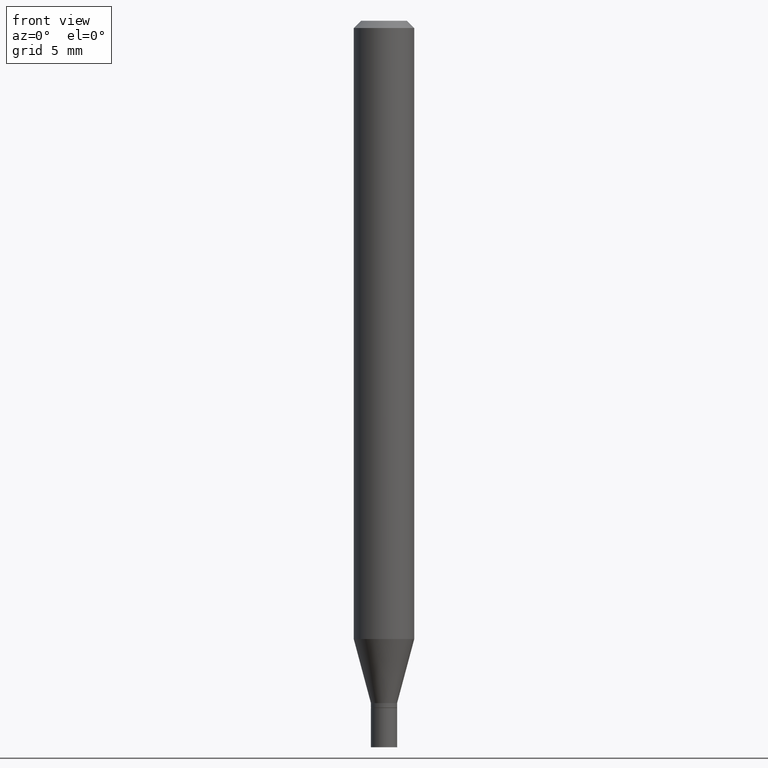
[diagram: clean part render]
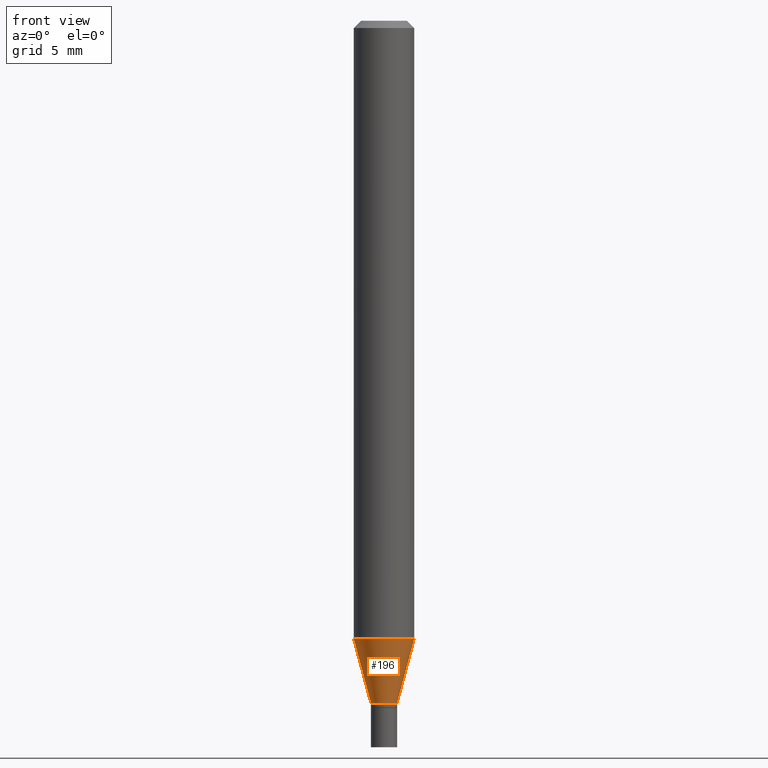
[diagram: same view with one face highlighted and labeled with its STEP entity id]
A machine part, front view. The second image highlights one B-rep face of the part: STEP entity #196.
In plain terms, the highlighted conical surface has half-angle 15 deg.
Its self-contained STEP definition (entity closure, byte-faithful):
#5 = DIRECTION ( 'NONE',  ( -0.2588190451025209060, 5.211531920934547097E-15, 0.9659258262890682012 ) ) ;
#50 = CARTESIAN_POINT ( 'NONE',  ( 3.445665547914857626E-29, -4.919497206429992694E-15, -1.409000000000000252 ) ) ;
#53 = EDGE_LOOP ( 'NONE', ( #230, #303, #254, #236 ) ) ;
#88 = DIRECTION ( 'NONE',  ( 1.000000000000000000, -6.982962677686281699E-15, 0.000000000000000000 ) ) ;
#119 = CARTESIAN_POINT ( 'NONE',  ( 0.06250000000000000000, -4.893353679651821108E-15, -1.276512196331304860 ) ) ;
#129 = CARTESIAN_POINT ( 'NONE',  ( 3.121670756843082346E-29, -4.456918512296428650E-15, -1.276512196331304860 ) ) ;
#135 = AXIS2_PLACEMENT_3D ( 'NONE', #461, #459, #416 ) ;
#139 = CARTESIAN_POINT ( 'NONE',  ( -0.02699999999999991990, -4.370239985110565754E-15, -1.409000000000000252 ) ) ;
#148 = AXIS2_PLACEMENT_3D ( 'NONE', #129, #209, #276 ) ;
#160 = CONICAL_SURFACE ( 'NONE', #285, 0.02699999999999991990, 0.2617993877991495744 ) ;
#170 = EDGE_CURVE ( 'NONE', #393, #210, #286, .T. ) ;
#171 = CARTESIAN_POINT ( 'NONE',  ( 0.02699999999999991990, -5.108037198727522179E-15, -1.409000000000000252 ) ) ;
#185 = DIRECTION ( 'NONE',  ( 0.2588190451025209060, 1.565188264969625123E-15, 0.9659258262890682012 ) ) ;
#196 = ADVANCED_FACE ( 'NONE', ( #334 ), #160, .T. ) ;
#204 = VERTEX_POINT ( 'NONE', #310 ) ;
#209 = DIRECTION ( 'NONE',  ( -2.445468806185136597E-29, 3.491481338843145583E-15, 1.000000000000000000 ) ) ;
#210 = VERTEX_POINT ( 'NONE', #119 ) ;
#213 = CIRCLE ( 'NONE', #135, 0.02699999999999991990 ) ;
#230 = ORIENTED_EDGE ( 'NONE', *, *, #433, .F. ) ;
#231 = CIRCLE ( 'NONE', #148, 0.06250000000000000000 ) ;
#236 = ORIENTED_EDGE ( 'NONE', *, *, #292, .F. ) ;
#254 = ORIENTED_EDGE ( 'NONE', *, *, #170, .T. ) ;
#276 = DIRECTION ( 'NONE',  ( 1.000000000000000000, -6.982962677686262766E-15, 0.000000000000000000 ) ) ;
#285 = AXIS2_PLACEMENT_3D ( 'NONE', #50, #394, #88 ) ;
#286 = LINE ( 'NONE', #314, #413 ) ;
#292 = EDGE_CURVE ( 'NONE', #204, #210, #231, .T. ) ;
#303 = ORIENTED_EDGE ( 'NONE', *, *, #327, .T. ) ;
#310 = CARTESIAN_POINT ( 'NONE',  ( -0.06250000000000000000, -4.012829302446366033E-15, -1.276512196331304860 ) ) ;
#312 = VERTEX_POINT ( 'NONE', #139 ) ;
#314 = CARTESIAN_POINT ( 'NONE',  ( 0.02699999999999991990, -5.108037198727522179E-15, -1.409000000000000252 ) ) ;
#324 = CARTESIAN_POINT ( 'NONE',  ( -0.02699999999999991990, -4.727650667774767051E-15, -1.409000000000000252 ) ) ;
#325 = VECTOR ( 'NONE', #5, 39.37007874015748143 ) ;
#326 = LINE ( 'NONE', #324, #325 ) ;
#327 = EDGE_CURVE ( 'NONE', #312, #393, #213, .T. ) ;
#334 = FACE_OUTER_BOUND ( 'NONE', #53, .T. ) ;
#393 = VERTEX_POINT ( 'NONE', #171 ) ;
#394 = DIRECTION ( 'NONE',  ( -2.445468806185136597E-29, 3.491481338843145583E-15, 1.000000000000000000 ) ) ;
#413 = VECTOR ( 'NONE', #185, 39.37007874015748143 ) ;
#416 = DIRECTION ( 'NONE',  ( 1.000000000000000000, -6.982962677686281699E-15, 0.000000000000000000 ) ) ;
#433 = EDGE_CURVE ( 'NONE', #312, #204, #326, .T. ) ;
#459 = DIRECTION ( 'NONE',  ( -2.445468806185136597E-29, 3.491481338843145583E-15, 1.000000000000000000 ) ) ;
#461 = CARTESIAN_POINT ( 'NONE',  ( 3.445665547914857626E-29, -4.919497206429992694E-15, -1.409000000000000252 ) ) ;